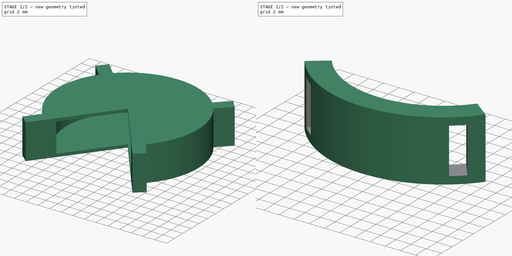
[diagram: build sequence overview — one tinted view per stage of 2, left to right]
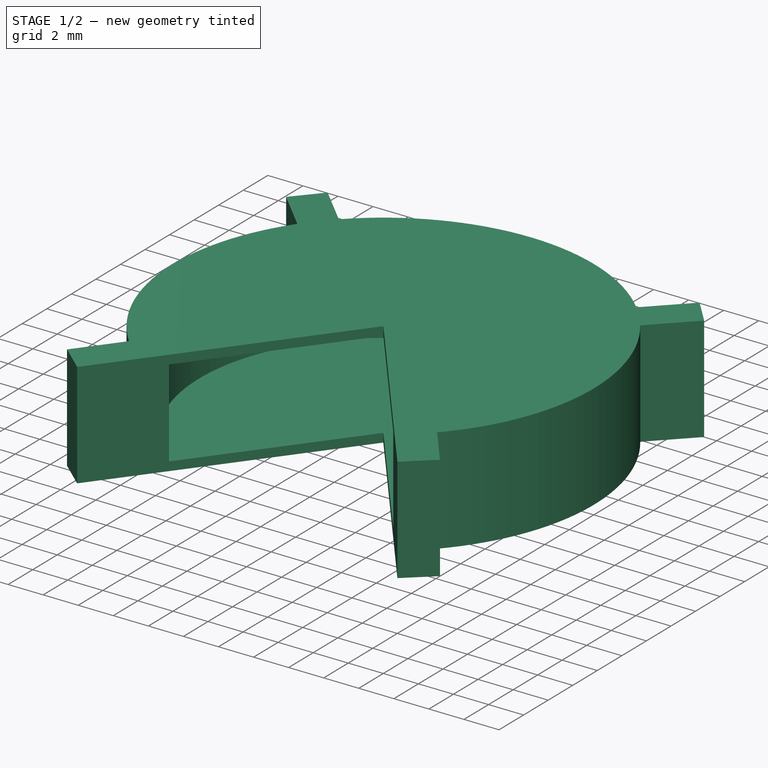
[diagram: stage 1 of 2 — iso view after this stage's code; geometry added in this stage tinted green]
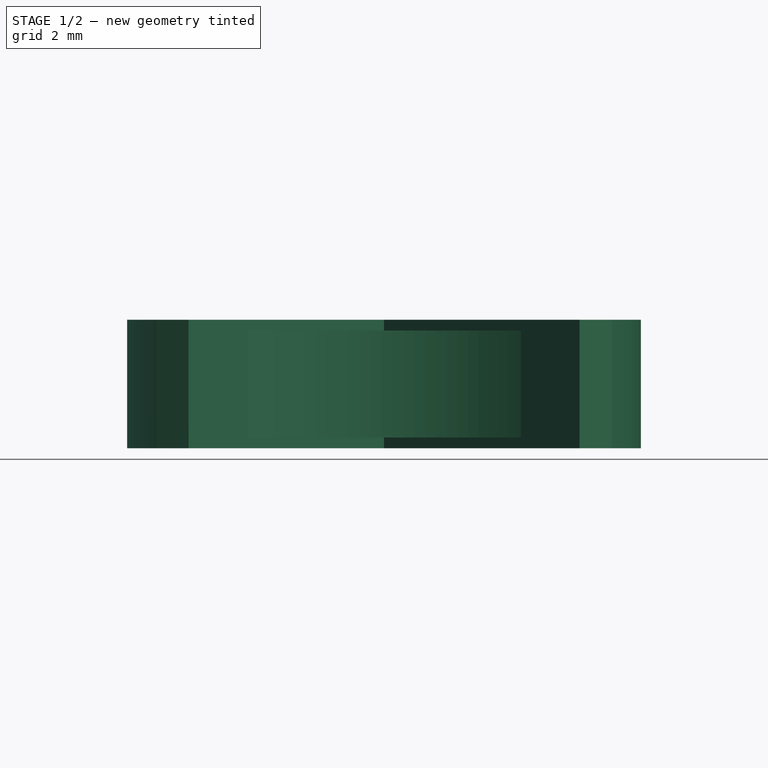
[diagram: stage 1 of 2 — front view after this stage's code; geometry added in this stage tinted green]
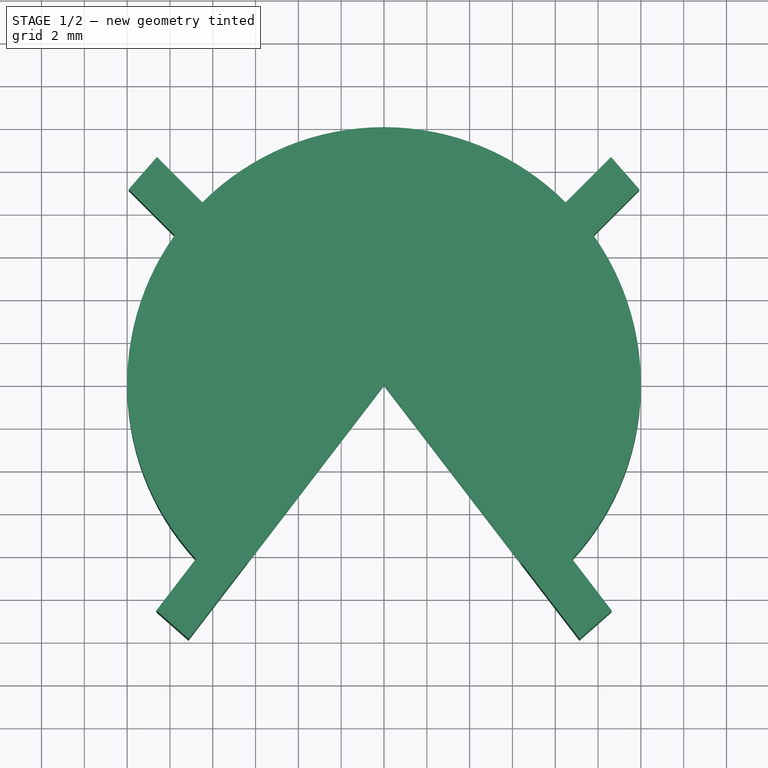
[diagram: stage 1 of 2 — top view after this stage's code; geometry added in this stage tinted green]
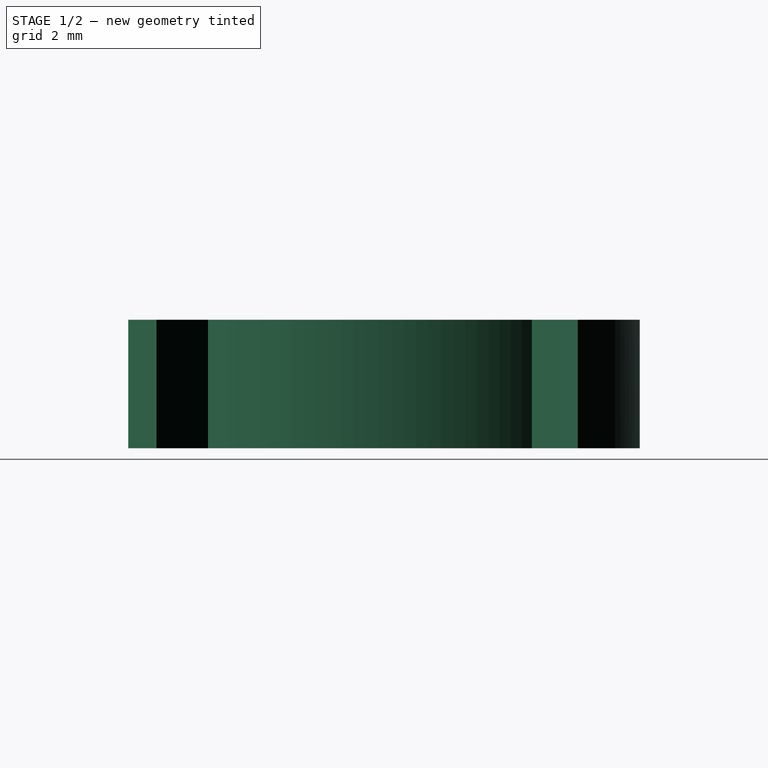
[diagram: stage 1 of 2 — right view after this stage's code; geometry added in this stage tinted green]
FCSTD DOCUMENT  (FreeCAD 0.20R29603 (Git))
Label: LaserSlotsLock
License: All rights reserved
LicenseURL: http://en.wikipedia.org/wiki/All_rights_reserved
objects: Sketcher::SketchObject×5, PartDesign::Pad×2, PartDesign::Body×2, PartDesign::Pocket×1, PartDesign::Boolean×1
note: 14 computed .brp shape members not serialized (recipe doc carries the construction recipe); baked Part::Feature solids carry a one-line shape summary decoded from their .brp

FEATURE [Sketcher::SketchObject] Sketch001
  FullyConstrained = true
  MapMode = 5
  Support = -> [XY_Plane001]
  sketch-geometry (18):
    g0: ArcOfCircle CenterX=0 CenterY=0 CenterZ=0 NormalX=0 NormalY=0 NormalZ=1 AngleXU=0 Radius=12 StartAngle=5.53396 EndAngle=6.90151
    g1: Circle CenterX=0 CenterY=0 CenterZ=0 NormalX=0 NormalY=0 NormalZ=1 AngleXU=0 Radius=15
    g2: LineSegment StartX=0 StartY=0 StartZ=0 EndX=-9.13142 EndY=-11.9003 EndZ=0
    g3: LineSegment StartX=0 StartY=0 StartZ=0 EndX=9.13142 EndY=-11.9003 EndZ=0
    g4: LineSegment StartX=-8.7866 StartY=-8.17287 StartZ=0 EndX=-10.6334 EndY=-10.5797 EndZ=0
    g5: LineSegment StartX=-10.6334 StartY=-10.5797 StartZ=0 EndX=-9.13142 EndY=-11.9003 EndZ=0
    g6: LineSegment StartX=9.13142 StartY=-11.9003 StartZ=0 EndX=10.6334 EndY=-10.5797 EndZ=0
    g7: LineSegment StartX=10.6334 StartY=-10.5797 StartZ=0 EndX=8.7866 EndY=-8.17287 EndZ=0
    g8: LineSegment StartX=0 StartY=0 StartZ=0 EndX=-10.6066 EndY=10.6066 EndZ=0
    g9: LineSegment StartX=0 StartY=0 StartZ=0 EndX=10.6066 EndY=10.6066 EndZ=0
    g10: LineSegment StartX=-8.48528 StartY=8.48528 StartZ=0 EndX=-10.6066 EndY=10.6066 EndZ=0
    g11: LineSegment StartX=-10.6066 StartY=10.6066 StartZ=0 EndX=-11.9234 EndY=9.10125 EndZ=0
    g12: LineSegment StartX=-11.9234 StartY=9.10125 StartZ=0 EndX=-9.7782 EndY=6.95606 EndZ=0
    g13: ArcOfCircle CenterX=0 CenterY=0 CenterZ=0 NormalX=0 NormalY=0 NormalZ=1 AngleXU=0 Radius=12 StartAngle=2.52327 EndAngle=3.89082
    g14: LineSegment StartX=8.48528 StartY=8.48528 StartZ=0 EndX=10.6066 EndY=10.6066 EndZ=0
    g15: LineSegment StartX=10.6066 StartY=10.6066 StartZ=0 EndX=11.9234 EndY=9.10125 EndZ=0
    g16: LineSegment StartX=11.9234 StartY=9.10125 StartZ=0 EndX=9.7782 EndY=6.95606 EndZ=0
    g17: ArcOfCircle CenterX=0 CenterY=0 CenterZ=0 NormalX=0 NormalY=0 NormalZ=1 AngleXU=0 Radius=12 StartAngle=0.785398 EndAngle=2.35619
  constraints (46):
    c: Diameter(g0) = 24
    c: Symmetric(g13,g0,g-2)
    c: Coincident(g0,g-1)
    c: Coincident(g1,g0)
    c: Diameter(g1) = 30
    c: Coincident(g2,g0)
    c: PointOnObject(g2,g1)
    c: Coincident(g3,g0)
    c: Coincident(g4,g13)
    c: PointOnObject(g4,g1)
    c: Coincident(g5,g4)
    c: Coincident(g5,g2)
    c: Parallel(g4,g2)
    c: Distance(g4,g2) = 2
    c: Symmetric(g3,g2,g-2)
    c: Angle(g2,g3) = 1.309
    c: Coincident(g7,g6)
    c: Coincident(g7,g0)
    c: Coincident(g6,g3)
    c: Symmetric(g4,g6,g-2)
    c: Coincident(g8,g0)
    c: Coincident(g9,g0)
    c: PointOnObject(g9,g1)
    c: Symmetric(g8,g9,g-2)
    c: Angle(g9,g8) = 1.5708
    c: Coincident(g11,g10)
    c: PointOnObject(g10,g0)
    c: PointOnObject(g10,g8)
    c: Coincident(g10,g8)
    c: PointOnObject(g11,g1)
    c: Coincident(g12,g11)
    c: Distance(g11) = 2
    c: Parallel(g12,g10)
    c: PointOnObject(g17,g8)
    c: Coincident(g13,g12)
    c: Coincident(g0,g13)
    c: Coincident(g14,g15)
    c: Coincident(g15,g16)
    c: Symmetric(g14,g17,g-2)
    c: Coincident(g9,g14)
    c: Symmetric(g15,g11,g-2)
    c: Symmetric(g16,g12,g-2)
    c: Equal(g0,g17)
    c: PointOnObject(g0,g16)
    c: PointOnObject(g17,g9)
    c: Coincident(g0,g17)
FEATURE [PartDesign::Pad] Pad001
  Direction = (0,0,1)
  Length = 6
  Length2 = 10
  Midplane = true
  Profile = -> Sketch001
  ReferenceAxis = -> Sketch001 [N_Axis]
  Type = 0
FEATURE [Sketcher::SketchObject] Sketch002
  AttachmentOffset = pos=(0,0,0) rot=(0,1,0;0.785398rad)
  FullyConstrained = true
  MapMode = 5
  Placement = pos=(0,0,0) rot=(0.281085,0.678598,0.678598;2.59356rad)
  Support = -> [YZ_Plane001]
  sketch-geometry (1):
    g0: Circle CenterX=0 CenterY=0 CenterZ=0 NormalX=0 NormalY=0 NormalZ=1 AngleXU=0 Radius=2.5
  constraints (2):
    c: Coincident(g0,g-1)
    c: Diameter(g0) = 5
FEATURE [Sketcher::SketchObject] Sketch003
  AttachmentOffset = pos=(0,0,0) rot=(0,1,0;2.35619rad)
  FullyConstrained = true
  MapMode = 5
  Placement = pos=(0,0,0) rot=(-0.281085,0.678598,0.678598;3.68962rad)
  Support = -> [YZ_Plane001]
  sketch-geometry (1):
    g0: Circle CenterX=0 CenterY=0 CenterZ=0 NormalX=0 NormalY=0 NormalZ=1 AngleXU=0 Radius=2.5
  constraints (2):
    c: Coincident(g0,g-1)
    c: Diameter(g0) = 5
FEATURE [Sketcher::SketchObject] Sketch004
  FullyConstrained = true
  MapMode = 5
  Placement = pos=(0,0,2.5) rot=(0,0,1;0rad)
  sketch-geometry (1):
    g0: Circle CenterX=0 CenterY=0 CenterZ=0 NormalX=0 NormalY=0 NormalZ=1 AngleXU=0 Radius=10.5
  constraints (2):
    c: Coincident(g0,g-1)
    c: Diameter(g0) = 21
FEATURE [PartDesign::Pocket] Pocket
  BaseFeature = -> Pad001
  Direction = (0,0,-1)
  Length = 5
  Length2 = 5
  Profile = -> Sketch004
  ReferenceAxis = -> Sketch004 [N_Axis]
  Type = 0
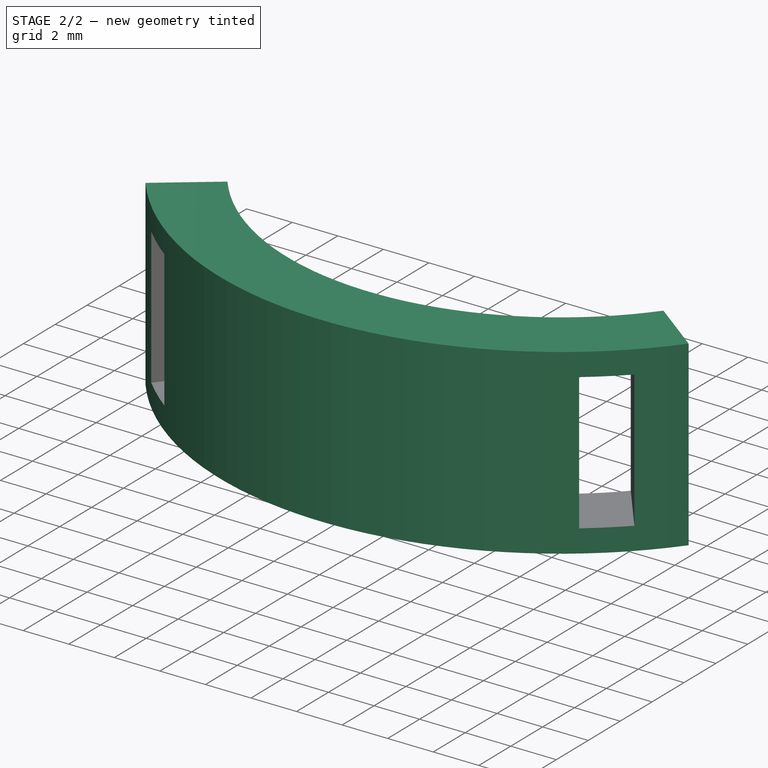
[diagram: stage 2 of 2 — iso view after this stage's code; geometry added in this stage tinted green]
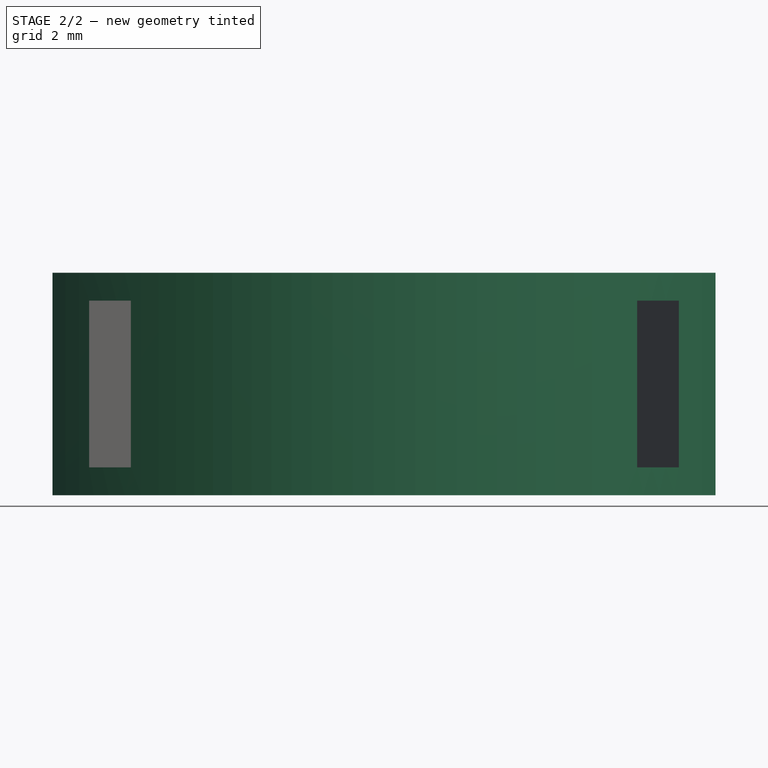
[diagram: stage 2 of 2 — front view after this stage's code; geometry added in this stage tinted green]
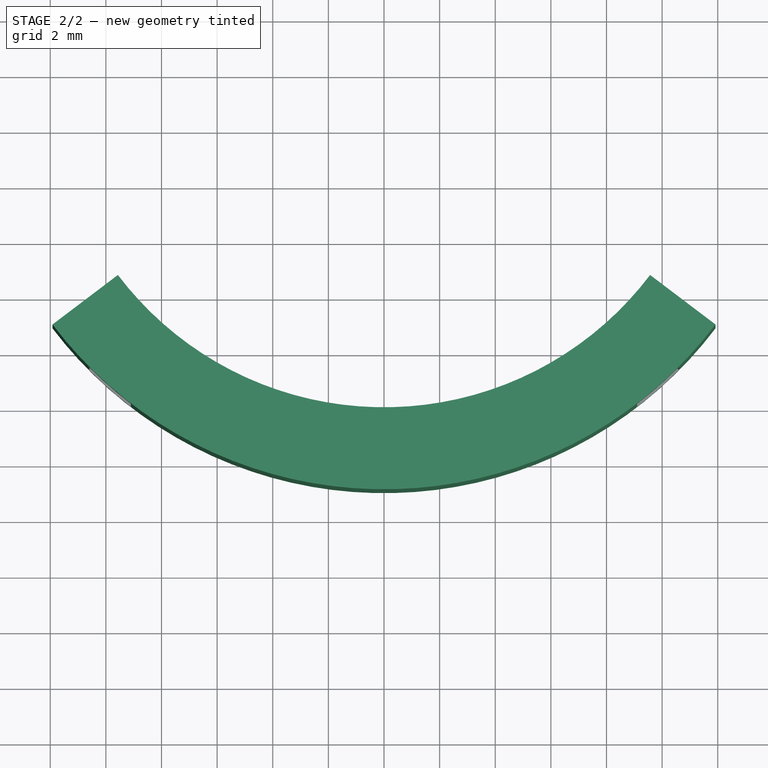
[diagram: stage 2 of 2 — top view after this stage's code; geometry added in this stage tinted green]
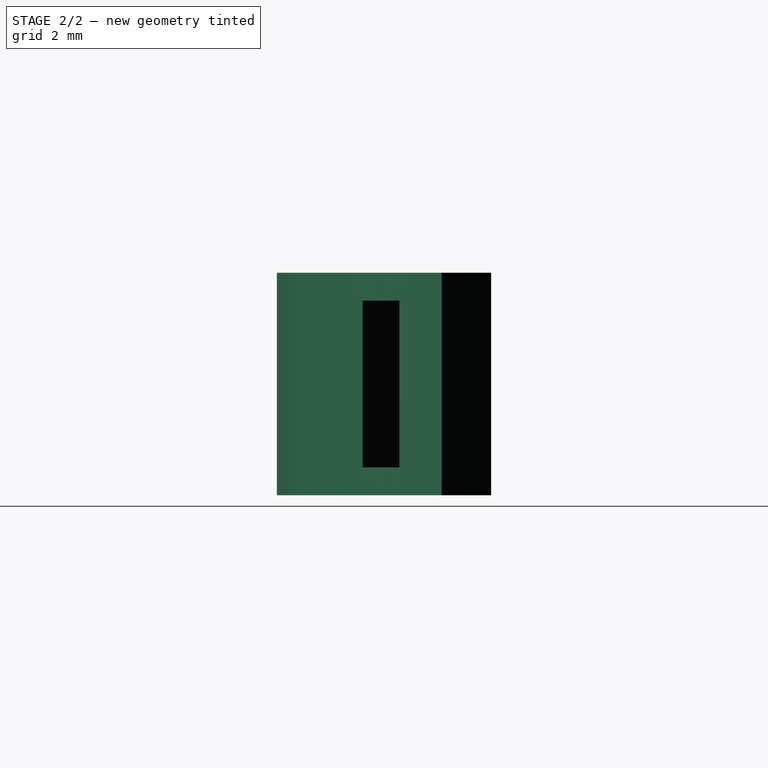
[diagram: stage 2 of 2 — right view after this stage's code; geometry added in this stage tinted green]
FEATURE [Sketcher::SketchObject] Sketch
  FullyConstrained = true
  MapMode = 5
  Support = -> [XY_Plane]
  sketch-geometry (11):
    g0: Circle CenterX=0 CenterY=0 CenterZ=0 NormalX=0 NormalY=0 NormalZ=1 AngleXU=0 Radius=12
    g1: Circle CenterX=0 CenterY=0 CenterZ=0 NormalX=0 NormalY=0 NormalZ=1 AngleXU=0 Radius=14.95
    g2: LineSegment StartX=0 StartY=0 StartZ=0 EndX=-9.10098 EndY=-11.8606 EndZ=0
    g3: LineSegment StartX=0 StartY=0 StartZ=0 EndX=9.10098 EndY=-11.8606 EndZ=0
    g4: ArcOfCircle CenterX=0 CenterY=0 CenterZ=0 NormalX=0 NormalY=0 NormalZ=1 AngleXU=0 Radius=12 StartAngle=3.78953 EndAngle=5.63525
    g5: LineSegment StartX=-11.9201 StartY=-9.02294 StartZ=0 EndX=-9.10098 EndY=-11.8606 EndZ=0
    g6: LineSegment StartX=0 StartY=0 StartZ=0 EndX=-11.9201 EndY=-9.02294 EndZ=0
    g7: LineSegment StartX=0 StartY=0 StartZ=0 EndX=11.9201 EndY=-9.02294 EndZ=0
    g8: LineSegment StartX=11.9201 StartY=-9.02294 StartZ=0 EndX=9.56798 EndY=-7.24249 EndZ=0
    g9: LineSegment StartX=-11.9201 StartY=-9.02294 StartZ=0 EndX=-9.56798 EndY=-7.24249 EndZ=0
    g10: ArcOfCircle CenterX=0 CenterY=0 CenterZ=0 NormalX=0 NormalY=0 NormalZ=1 AngleXU=0 Radius=14.95 StartAngle=3.78953 EndAngle=5.63525
  constraints (27):
    c: Coincident(g0,g-1)
    c: Coincident(g1,g0)
    c: Diameter(g0) = 24
    c: Diameter(g1) = 29.9
    c: Coincident(g2,g0)
    c: PointOnObject(g2,g1)
    c: Coincident(g3,g0)
    c: Angle(g2,g3) = 1.309
    c: Symmetric(g3,g2,g-2)
    c: Coincident(g4,g0)
    c: Coincident(g5,g2)
    c: PointOnObject(g5,g1)
    c: Distance(g5) = 4
    c: Coincident(g6,g4)
    c: Coincident(g6,g5)
    c: Coincident(g7,g4)
    c: Symmetric(g7,g5,g-2)
    c: PointOnObject(g4,g0)
    c: PointOnObject(g4,g6)
    c: PointOnObject(g4,g7)
    c: Coincident(g9,g4)
    c: Coincident(g9,g5)
    c: Coincident(g8,g4)
    c: Coincident(g8,g7)
    c: Coincident(g10,g4)
    c: Coincident(g10,g9)
    c: PointOnObject(g10,g7)
FEATURE [PartDesign::Pad] Pad
  Direction = (0,0,1)
  Length = 8
  Length2 = 10
  Midplane = true
  Profile = -> Sketch
  ReferenceAxis = -> Sketch [N_Axis]
  Type = 0
FEATURE [PartDesign::Body] Body001
  Group = -> [Sketch001,Pad001,Sketch002,Sketch003,Sketch004,Pocket]
  Origin = -> Origin001
  Tip = -> Pocket
FEATURE [PartDesign::Boolean] Boolean
  BaseFeature = -> Pad
  Group = -> [Body001]
  Type = 1
FEATURE [PartDesign::Body] Body
  Group = -> [Sketch,Pad,Boolean]
  Origin = -> Origin
  Tip = -> Boolean
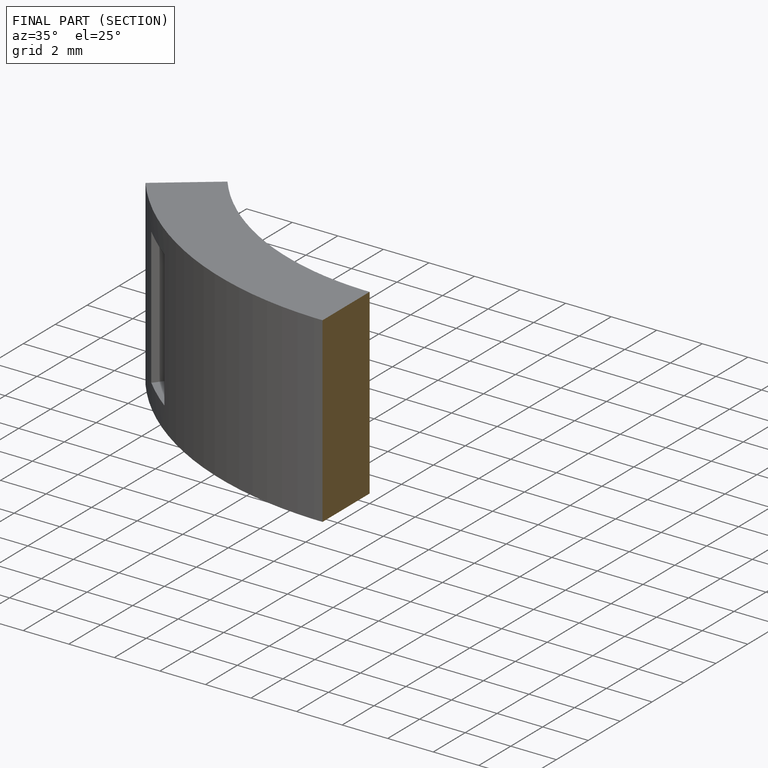
[diagram: finished part — half-section view (interior)]
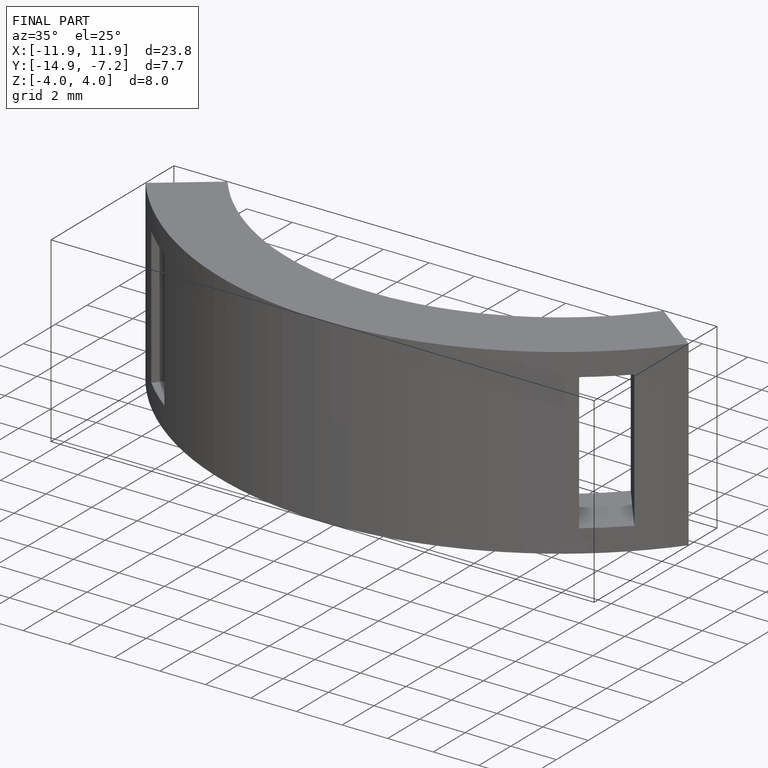
[diagram: finished part — iso view with bounding-box wireframe]
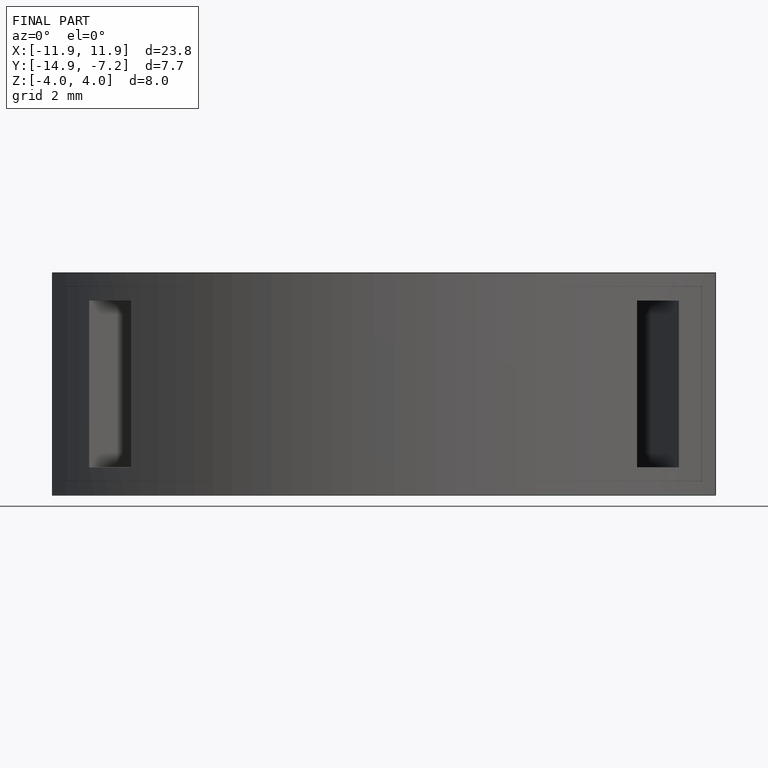
[diagram: finished part — front view with bounding-box wireframe]
